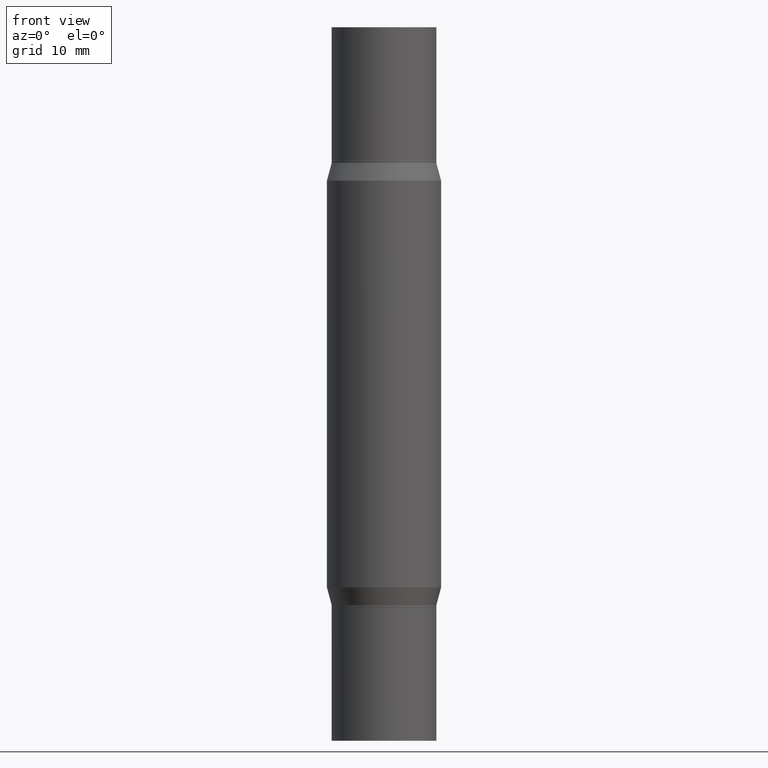
[diagram: clean part render]
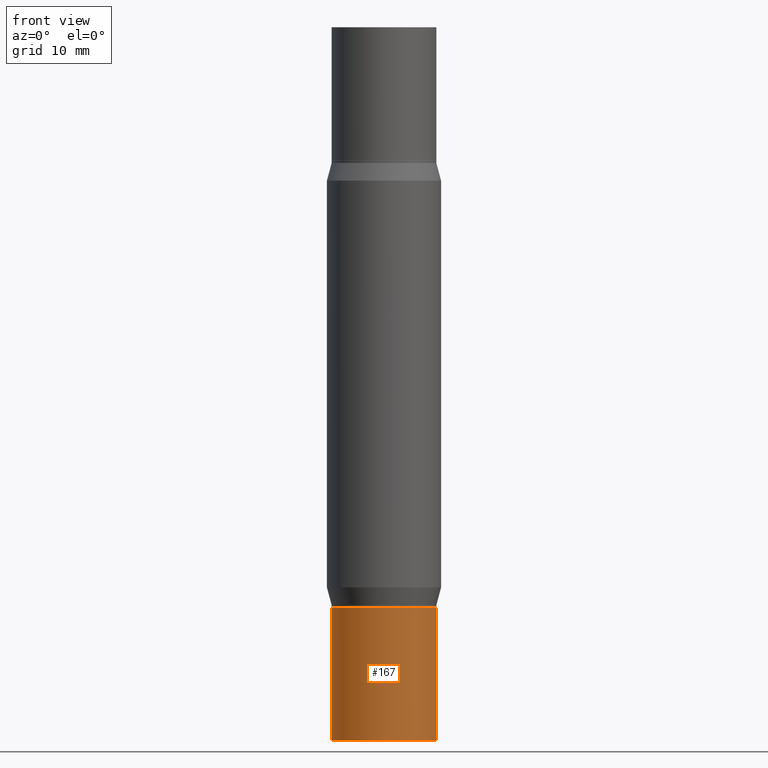
[diagram: same view with one face highlighted and labeled with its STEP entity id]
A machine part, front view. The second image highlights one B-rep face of the part: STEP entity #167.
In plain terms, the highlighted cylindrical surface (partial cylindrical patch) has radius 5.5004 mm, axis along (-0, 0, 1).
Its self-contained STEP definition (entity closure, byte-faithful):
#14 = CARTESIAN_POINT ( 'NONE',  ( 0.2165500000000000758, -1.512160567852961612E-15, 1.055936080798610316E-29 ) ) ;
#65 = CARTESIAN_POINT ( 'NONE',  ( -0.2165500000000000758, -7.808713546062369221E-15, -2.401599999999999735 ) ) ;
#80 = VECTOR ( 'NONE', #144, 39.37007874015748143 ) ;
#88 = DIRECTION ( 'NONE',  ( -2.445468806185136597E-29, 3.491481338843145583E-15, 1.000000000000000000 ) ) ;
#144 = DIRECTION ( 'NONE',  ( -2.445468806185136877E-29, 3.491481338843145188E-15, 1.000000000000000000 ) ) ;
#160 = DIRECTION ( 'NONE',  ( 1.000000000000000000, -6.982962677686261977E-15, 0.000000000000000000 ) ) ;
#167 = ADVANCED_FACE ( 'NONE', ( #236 ), #540, .T. ) ;
#181 = EDGE_CURVE ( 'NONE', #806, #932, #767, .T. ) ;
#187 = ORIENTED_EDGE ( 'NONE', *, *, #873, .F. ) ;
#196 = AXIS2_PLACEMENT_3D ( 'NONE', #595, #88, #538 ) ;
#236 = FACE_OUTER_BOUND ( 'NONE', #400, .T. ) ;
#242 = CARTESIAN_POINT ( 'NONE',  ( 0.2165500000000000758, -9.897302151218658086E-15, -2.401599999999999735 ) ) ;
#260 = VECTOR ( 'NONE', #332, 39.37007874015748143 ) ;
#296 = CARTESIAN_POINT ( 'NONE',  ( -0.2165500000000000758, 1.538680294288497491E-15, -1.065195393794700203E-29 ) ) ;
#332 = DIRECTION ( 'NONE',  ( -2.445468806185136877E-29, 3.491481338843145188E-15, 1.000000000000000000 ) ) ;
#374 = ORIENTED_EDGE ( 'NONE', *, *, #181, .T. ) ;
#400 = EDGE_LOOP ( 'NONE', ( #187, #374, #641, #971 ) ) ;
#410 = DIRECTION ( 'NONE',  ( -2.445468806185136597E-29, 3.491481338843145583E-15, 1.000000000000000000 ) ) ;
#535 = CARTESIAN_POINT ( 'NONE',  ( 0.000000000000000000, 0.000000000000000000, 0.000000000000000000 ) ) ;
#538 = DIRECTION ( 'NONE',  ( 1.000000000000000000, -6.982962677686266711E-15, 0.000000000000000000 ) ) ;
#540 = CYLINDRICAL_SURFACE ( 'NONE', #801, 0.2165500000000000758 ) ;
#557 = VERTEX_POINT ( 'NONE', #242 ) ;
#595 = CARTESIAN_POINT ( 'NONE',  ( 5.873037884934223228E-29, -8.385141583365697263E-15, -2.401599999999999735 ) ) ;
#615 = LINE ( 'NONE', #14, #260 ) ;
#641 = ORIENTED_EDGE ( 'NONE', *, *, #665, .T. ) ;
#648 = CIRCLE ( 'NONE', #196, 0.2165500000000000758 ) ;
#658 = EDGE_CURVE ( 'NONE', #854, #557, #648, .T. ) ;
#662 = LINE ( 'NONE', #296, #80 ) ;
#665 = EDGE_CURVE ( 'NONE', #932, #557, #615, .T. ) ;
#767 = CIRCLE ( 'NONE', #979, 0.2165500000000000758 ) ;
#775 = DIRECTION ( 'NONE',  ( 1.000000000000000000, -6.982962677686266711E-15, 4.876176775795935793E-29 ) ) ;
#801 = AXIS2_PLACEMENT_3D ( 'NONE', #535, #846, #775 ) ;
#806 = VERTEX_POINT ( 'NONE', #925 ) ;
#841 = CARTESIAN_POINT ( 'NONE',  ( 7.220980290903470182E-29, -1.030964609733603853E-14, -2.952799999999999869 ) ) ;
#846 = DIRECTION ( 'NONE',  ( -2.445468806185136597E-29, 3.491481338843145583E-15, 1.000000000000000000 ) ) ;
#853 = CARTESIAN_POINT ( 'NONE',  ( 0.2165500000000000758, -1.182180666518899935E-14, -2.952799999999999869 ) ) ;
#854 = VERTEX_POINT ( 'NONE', #65 ) ;
#873 = EDGE_CURVE ( 'NONE', #806, #854, #662, .T. ) ;
#925 = CARTESIAN_POINT ( 'NONE',  ( -0.2165500000000000758, -7.808713546062369221E-15, -2.952799999999999869 ) ) ;
#932 = VERTEX_POINT ( 'NONE', #853 ) ;
#971 = ORIENTED_EDGE ( 'NONE', *, *, #658, .F. ) ;
#979 = AXIS2_PLACEMENT_3D ( 'NONE', #841, #410, #160 ) ;